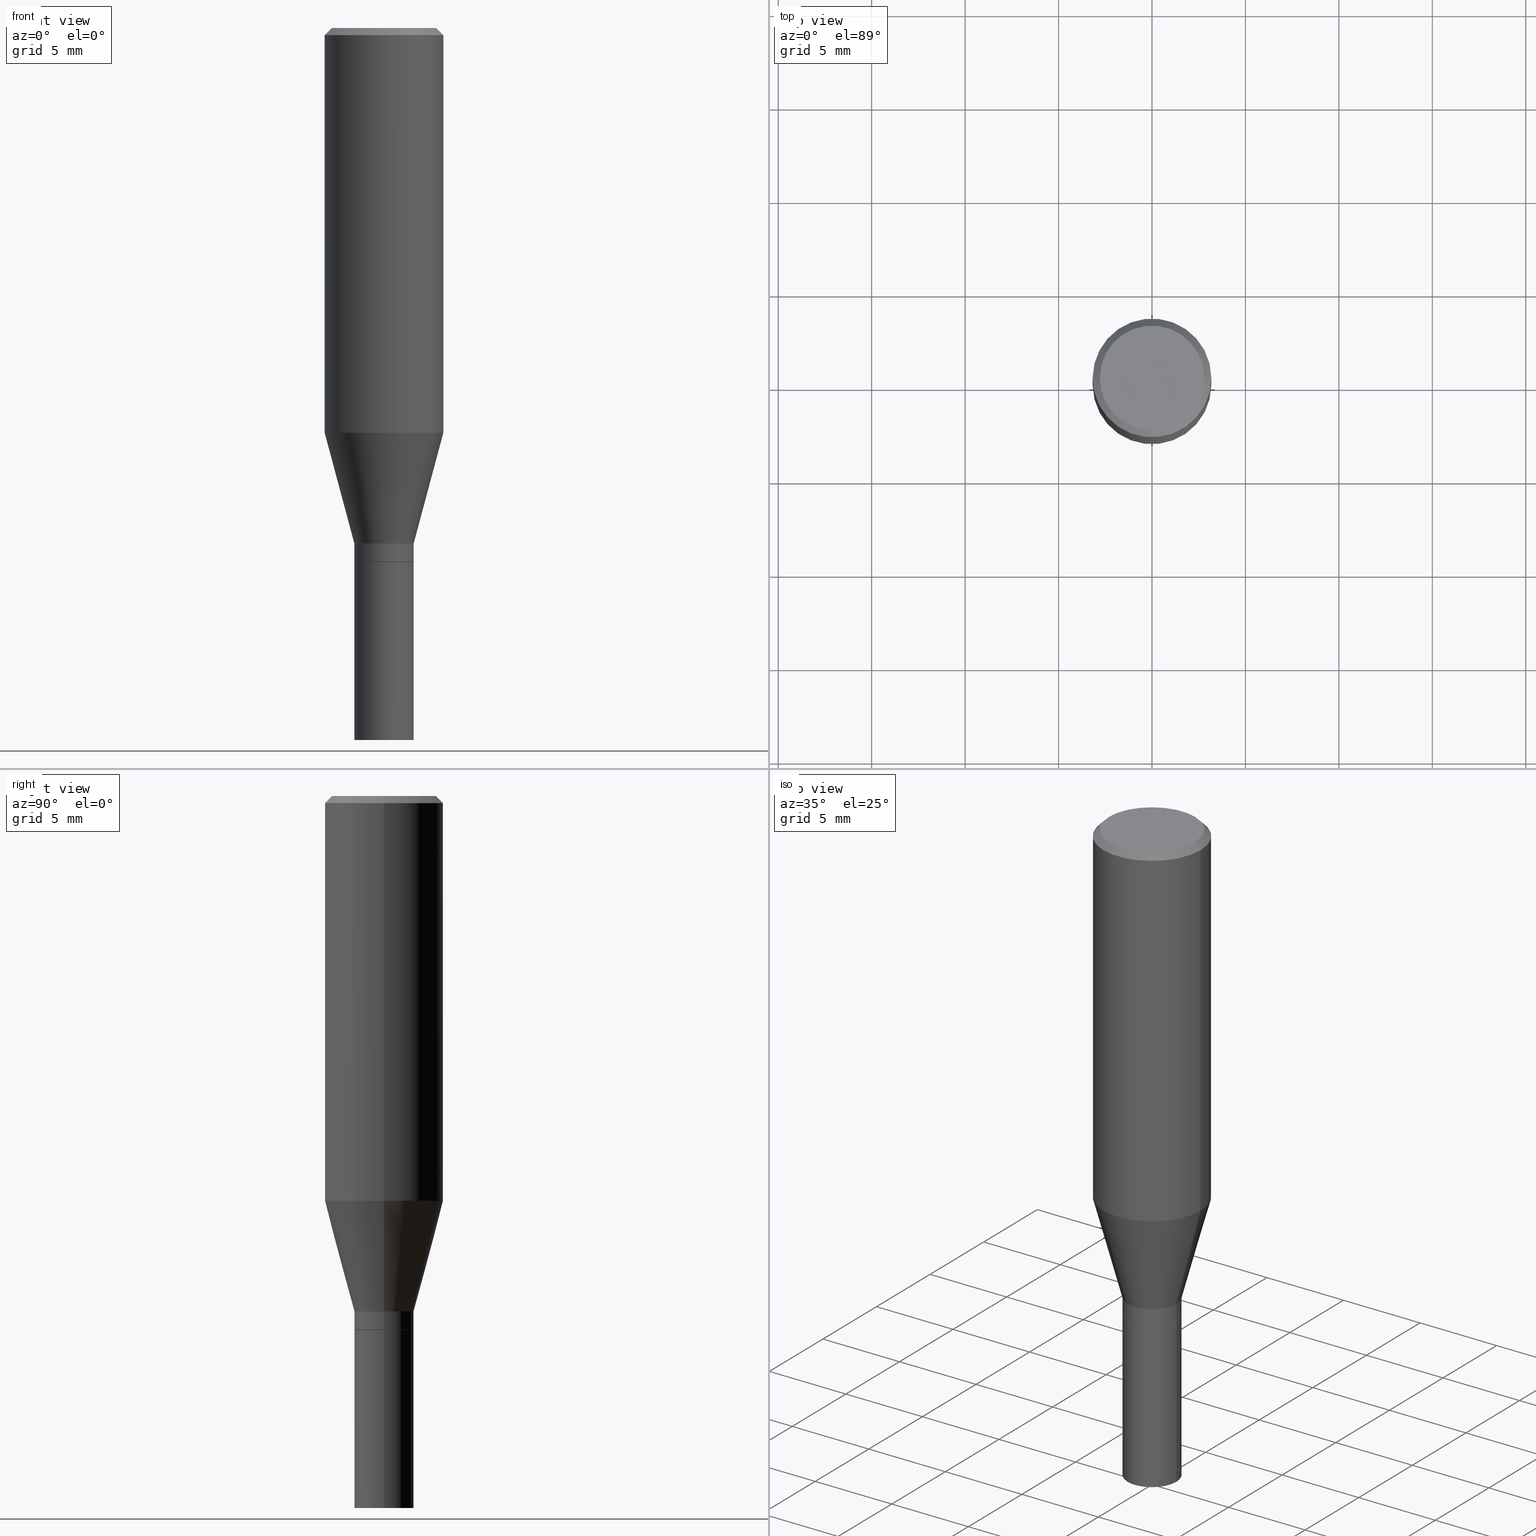
[diagram: canonical four-view strip — front | top / right | iso, engineering-drawing reading convention]
A machine part, canonical four-view strip (front | top / right | iso — engineering-drawing reading convention). The complete STEP part file that produces these views, byte-faithful:
ISO-10303-21;
HEADER;
FILE_DESCRIPTION (( 'STEP AP203' ),
    '1' );
FILE_NAME ('32280.STEP',
    '2024-03-13T16:37:38',
    ( '' ),
    ( '' ),
    'SwSTEP 2.0',
    'SolidWorks 2023',
    '' );
FILE_SCHEMA (( 'CONFIG_CONTROL_DESIGN' ));
ENDSEC;

DATA;
#1 = ORIENTED_EDGE ( 'NONE', *, *, #435, .F. ) ;
#2 = AXIS2_PLACEMENT_3D ( 'NONE', #340, #269, #224 ) ;
#3 = CC_DESIGN_PERSON_AND_ORGANIZATION_ASSIGNMENT ( #439, #408, ( #305 ) ) ;
#4 = CARTESIAN_POINT ( 'NONE',  ( 2.655779123517058654E-29, -3.791748733983656424E-15, -1.086000000000000076 ) ) ;
#5 = DIRECTION ( 'NONE',  ( -2.445468806185136597E-29, 3.491481338843145583E-15, 1.000000000000000000 ) ) ;
#6 = DIRECTION ( 'NONE',  ( -2.445468806185136597E-29, 3.491481338843145583E-15, 1.000000000000000000 ) ) ;
#7 = APPROVAL_DATE_TIME ( #247, #306 ) ;
#8 = CALENDAR_DATE ( 2024, 13, 3 ) ;
#9 = CARTESIAN_POINT ( 'NONE',  ( 0.06199999999999999956, -4.360860192215087886E-15, -1.125000000000000222 ) ) ;
#10 = PRODUCT ( '32280', '32280', '', ( #442 ) ) ;
#11 = LINE ( 'NONE', #441, #197 ) ;
#12 = DATE_AND_TIME ( #28, #223 ) ;
#13 = DIRECTION ( 'NONE',  ( 2.438088387897960049E-29, -3.491481338843145188E-15, -1.000000000000000000 ) ) ;
#14 = DIRECTION ( 'NONE',  ( -2.445468806185136597E-29, 3.491481338843145583E-15, 1.000000000000000000 ) ) ;
#15 = CARTESIAN_POINT ( 'NONE',  ( 2.749929672555186430E-29, -3.926170765529117721E-15, -1.124500000000000055 ) ) ;
#16 = ADVANCED_FACE ( 'NONE', ( #143 ), #316, .T. ) ;
#17 = LINE ( 'NONE', #219, #416 ) ;
#18 = AXIS2_PLACEMENT_3D ( 'NONE', #79, #178, #311 ) ;
#19 = CC_DESIGN_PERSON_AND_ORGANIZATION_ASSIGNMENT ( #307, #237, ( #386 ) ) ;
#20 = AXIS2_PLACEMENT_3D ( 'NONE', #251, #407, #412 ) ;
#21 = FACE_OUTER_BOUND ( 'NONE', #40, .T. ) ;
#22 = EDGE_CURVE ( 'NONE', #401, #147, #374, .T. ) ;
#23 = DIRECTION ( 'NONE',  ( -2.445468806185136597E-29, 3.491481338843145583E-15, 1.000000000000000000 ) ) ;
#24 = AXIS2_PLACEMENT_3D ( 'NONE', #4, #137, #34 ) ;
#25 = VERTEX_POINT ( 'NONE', #371 ) ;
#26 = CIRCLE ( 'NONE', #167, 0.06250000000000000000 ) ;
#27 = EDGE_LOOP ( 'NONE', ( #360, #136, #176, #201 ) ) ;
#28 = CALENDAR_DATE ( 2024, 13, 3 ) ;
#29 = ORIENTED_EDGE ( 'NONE', *, *, #229, .F. ) ;
#30 = CARTESIAN_POINT ( 'NONE',  ( 0.000000000000000000, 0.000000000000000000, 0.000000000000000000 ) ) ;
#31 = AXIS2_PLACEMENT_3D ( 'NONE', #148, #189, #221 ) ;
#32 = LOCAL_TIME ( 12, 37, 38.00000000000000000, #320 ) ;
#33 = CARTESIAN_POINT ( 'NONE',  ( 1.876754654212523840E-46, -2.679508254694119990E-32, -7.674416657721384454E-18 ) ) ;
#34 = DIRECTION ( 'NONE',  ( 1.000000000000000000, -6.982962677686264344E-15, 0.000000000000000000 ) ) ;
#35 = DIRECTION ( 'NONE',  ( 1.000000000000000000, -6.982962677686264344E-15, 0.000000000000000000 ) ) ;
#36 = DIRECTION ( 'NONE',  ( -2.445468806185136597E-29, 3.491481338843145583E-15, 1.000000000000000000 ) ) ;
#37 = ORIENTED_EDGE ( 'NONE', *, *, #74, .F. ) ;
#38 = APPROVAL_STATUS ( 'not_yet_approved' ) ;
#39 = LINE ( 'NONE', #256, #338 ) ;
#40 = EDGE_LOOP ( 'NONE', ( #95, #122, #291, #349 ) ) ;
#41 = DIRECTION ( 'NONE',  ( -2.445468806185136597E-29, 3.491481338843145583E-15, 1.000000000000000000 ) ) ;
#42 = EDGE_CURVE ( 'NONE', #345, #25, #86, .T. ) ;
#43 = CARTESIAN_POINT ( 'NONE',  ( 2.751152406958279232E-29, -3.927916506198539224E-15, -1.125000000000000222 ) ) ;
#44 = VECTOR ( 'NONE', #398, 39.37007874015747433 ) ;
#45 = CARTESIAN_POINT ( 'NONE',  ( 0.1250000000000000000, -9.099344698040885245E-16, -0.01499999999999999944 ) ) ;
#46 = LINE ( 'NONE', #145, #230 ) ;
#47 = EDGE_CURVE ( 'NONE', #345, #255, #363, .T. ) ;
#48 = DIRECTION ( 'NONE',  ( 1.000000000000000000, -6.982962677686266711E-15, 0.000000000000000000 ) ) ;
#49 = CLOSED_SHELL ( 'NONE', ( #69, #466, #146, #458, #89, #16, #428, #216, #163, #273, #325, #182 ) ) ;
#50 = AXIS2_PLACEMENT_3D ( 'NONE', #330, #14, #84 ) ;
#51 = FACE_OUTER_BOUND ( 'NONE', #414, .T. ) ;
#52 = CARTESIAN_POINT ( 'NONE',  ( -0.06250000000000019429, -2.718415364513525405E-15, -1.086000000000000076 ) ) ;
#53 = EDGE_LOOP ( 'NONE', ( #314, #85, #268, #99 ) ) ;
#54 = EDGE_CURVE ( 'NONE', #401, #391, #333, .T. ) ;
#55 = DIRECTION ( 'NONE',  ( -2.445468806185136877E-29, 3.491481338843145188E-15, 1.000000000000000000 ) ) ;
#56 = APPLICATION_CONTEXT ( 'configuration controlled 3d designs of mechanical parts and assemblies' ) ;
#57 = CIRCLE ( 'NONE', #153, 0.06249999999999992367 ) ;
#58 = ORIENTED_EDGE ( 'NONE', *, *, #42, .F. ) ;
#59 =( GEOMETRIC_REPRESENTATION_CONTEXT ( 3 ) GLOBAL_UNCERTAINTY_ASSIGNED_CONTEXT ( ( #144 ) ) GLOBAL_UNIT_ASSIGNED_CONTEXT ( ( #336, #267, #460 ) ) REPRESENTATION_CONTEXT ( 'NONE', 'WORKASPACE' ) );
#60 = CC_DESIGN_DATE_AND_TIME_ASSIGNMENT ( #234, #392, ( #386 ) ) ;
#61 = COORDINATED_UNIVERSAL_TIME_OFFSET ( 5, 0, .BEHIND. ) ;
#62 = VECTOR ( 'NONE', #294, 39.37007874015748143 ) ;
#63 = DATE_AND_TIME ( #73, #207 ) ;
#64 = CARTESIAN_POINT ( 'NONE',  ( 0.06250000000000000000, -4.364351673553930894E-15, -1.125000000000000222 ) ) ;
#65 = ORIENTED_EDGE ( 'NONE', *, *, #404, .F. ) ;
#66 = EDGE_LOOP ( 'NONE', ( #433, #362, #259, #244 ) ) ;
#67 = VERTEX_POINT ( 'NONE', #353 ) ;
#68 = DIRECTION ( 'NONE',  ( -1.000000000000000000, 6.982962677686266711E-15, 0.000000000000000000 ) ) ;
#69 = ADVANCED_FACE ( 'NONE', ( #318 ), #133, .T. ) ;
#70 = EDGE_LOOP ( 'NONE', ( #402, #352, #209, #71 ) ) ;
#71 = ORIENTED_EDGE ( 'NONE', *, *, #245, .F. ) ;
#72 = CARTESIAN_POINT ( 'NONE',  ( 2.749929672555186430E-29, -3.926170765529117721E-15, -1.124500000000000055 ) ) ;
#73 = CALENDAR_DATE ( 2024, 13, 3 ) ;
#74 = EDGE_CURVE ( 'NONE', #312, #436, #453, .T. ) ;
#75 = EDGE_LOOP ( 'NONE', ( #29, #411, #315, #200 ) ) ;
#76 = ORIENTED_EDGE ( 'NONE', *, *, #286, .F. ) ;
#77 = ORIENTED_EDGE ( 'NONE', *, *, #156, .F. ) ;
#78 = CARTESIAN_POINT ( 'NONE',  ( -0.06249999999999992367, -3.482081555679055893E-15, -1.124500000000000055 ) ) ;
#79 = CARTESIAN_POINT ( 'NONE',  ( 0.000000000000000000, 0.000000000000000000, 0.000000000000000000 ) ) ;
#80 = DIRECTION ( 'NONE',  ( -2.445468806185136877E-29, 3.491481338843145188E-15, 1.000000000000000000 ) ) ;
#81 = CIRCLE ( 'NONE', #149, 0.1250000000000000000 ) ;
#82 = APPROVAL ( #235, 'UNSPECIFIED' ) ;
#83 = DIRECTION ( 'NONE',  ( 1.000000000000000000, -6.982962677686266711E-15, 4.876176775795935793E-29 ) ) ;
#84 = DIRECTION ( 'NONE',  ( 1.000000000000000000, -6.982962677686262766E-15, 0.000000000000000000 ) ) ;
#85 = ORIENTED_EDGE ( 'NONE', *, *, #417, .T. ) ;
#86 = CIRCLE ( 'NONE', #375, 0.1100000000000000006 ) ;
#87 = CONICAL_SURFACE ( 'NONE', #177, 0.1250000000000000000, 0.7853981633974483900 ) ;
#88 = CARTESIAN_POINT ( 'NONE',  ( 3.668203209277705088E-31, -5.237222008264718399E-17, -0.01499999999999999944 ) ) ;
#89 = ADVANCED_FACE ( 'NONE', ( #319 ), #93, .T. ) ;
#90 = CARTESIAN_POINT ( 'NONE',  ( 0.1250000000000000000, -9.252425547934304180E-16, -0.01499999999999999944 ) ) ;
#91 = LINE ( 'NONE', #451, #282 ) ;
#92 = CARTESIAN_POINT ( 'NONE',  ( 0.000000000000000000, 0.000000000000000000, 0.000000000000000000 ) ) ;
#93 = CONICAL_SURFACE ( 'NONE', #185, 0.06250000000000019429, 0.2617993877991500740 ) ;
#94 = CC_DESIGN_PERSON_AND_ORGANIZATION_ASSIGNMENT ( #172, #238, ( #10 ) ) ;
#95 = ORIENTED_EDGE ( 'NONE', *, *, #169, .T. ) ;
#96 = COORDINATED_UNIVERSAL_TIME_OFFSET ( 5, 0, .BEHIND. ) ;
#97 = DIRECTION ( 'NONE',  ( 1.000000000000000000, -6.982962677686265922E-15, 4.876176775795935793E-29 ) ) ;
#98 = LENGTH_MEASURE_WITH_UNIT ( LENGTH_MEASURE( 0.02539999999999999897 ), #430 );
#99 = ORIENTED_EDGE ( 'NONE', *, *, #387, .F. ) ;
#100 = CYLINDRICAL_SURFACE ( 'NONE', #462, 0.06250000000000000000 ) ;
#101 = AXIS2_PLACEMENT_3D ( 'NONE', #103, #322, #437 ) ;
#102 = EDGE_CURVE ( 'NONE', #147, #401, #141, .T. ) ;
#103 = CARTESIAN_POINT ( 'NONE',  ( 0.000000000000000000, 0.000000000000000000, 0.000000000000000000 ) ) ;
#104 = CARTESIAN_POINT ( 'NONE',  ( -0.06250000000000000000, -4.138480047381566479E-15, -1.125000000000000222 ) ) ;
#105 = AXIS2_PLACEMENT_3D ( 'NONE', #33, #36, #368 ) ;
#106 = APPROVAL_PERSON_ORGANIZATION ( #364, #204, #348 ) ;
#107 = DIRECTION ( 'NONE',  ( -2.445468806185136597E-29, 3.491481338843145583E-15, 1.000000000000000000 ) ) ;
#108 = ORIENTED_EDGE ( 'NONE', *, *, #22, .T. ) ;
#109 = VERTEX_POINT ( 'NONE', #104 ) ;
#110 = DIRECTION ( 'NONE',  ( -2.445468806185136877E-29, 3.491481338843145188E-15, 1.000000000000000000 ) ) ;
#111 = DIRECTION ( 'NONE',  ( -2.445468806185136597E-29, 3.491481338843145583E-15, 1.000000000000000000 ) ) ;
#112 = CARTESIAN_POINT ( 'NONE',  ( 0.000000000000000000, 0.000000000000000000, 0.000000000000000000 ) ) ;
#113 = CIRCLE ( 'NONE', #239, 0.06249999999999992367 ) ;
#114 = CARTESIAN_POINT ( 'NONE',  ( 3.668203209277704895E-29, -5.237222008264718177E-15, -1.500000000000000222 ) ) ;
#115 = DIRECTION ( 'NONE',  ( -2.438088387897960049E-29, 3.491481338843145188E-15, 1.000000000000000000 ) ) ;
#116 = DIRECTION ( 'NONE',  ( -1.000000000000000000, 6.982962677686265922E-15, -4.876176775795935793E-29 ) ) ;
#117 = EDGE_CURVE ( 'NONE', #255, #160, #217, .T. ) ;
#118 = AXIS2_PLACEMENT_3D ( 'NONE', #187, #380, #116 ) ;
#119 = CARTESIAN_POINT ( 'NONE',  ( 0.06250000000000000000, -4.364351673553916694E-16, 3.047610484872459871E-30 ) ) ;
#120 = EDGE_LOOP ( 'NONE', ( #108, #227, #358, #162 ) ) ;
#121 = APPROVAL_STATUS ( 'not_yet_approved' ) ;
#122 = ORIENTED_EDGE ( 'NONE', *, *, #257, .T. ) ;
#123 = DIRECTION ( 'NONE',  ( 1.000000000000000000, -6.982962677686265922E-15, 4.876176775795935793E-29 ) ) ;
#124 = EDGE_CURVE ( 'NONE', #425, #357, #57, .T. ) ;
#125 = AXIS2_PLACEMENT_3D ( 'NONE', #138, #323, #289 ) ;
#126 = ORIENTED_EDGE ( 'NONE', *, *, #317, .F. ) ;
#127 = PRODUCT_DEFINITION_FORMATION_WITH_SPECIFIED_SOURCE ( 'ANY', '', #10, .NOT_KNOWN. ) ;
#128 = DIRECTION ( 'NONE',  ( 1.000000000000000000, -6.982962677686262766E-15, 0.000000000000000000 ) ) ;
#129 = PERSON_AND_ORGANIZATION_ROLE ( 'design_supplier' ) ;
#130 = EDGE_CURVE ( 'NONE', #436, #357, #11, .T. ) ;
#131 = VECTOR ( 'NONE', #110, 39.37007874015748143 ) ;
#132 = ORIENTED_EDGE ( 'NONE', *, *, #342, .T. ) ;
#133 = CYLINDRICAL_SURFACE ( 'NONE', #101, 0.06250000000000005551 ) ;
#134 = ORIENTED_EDGE ( 'NONE', *, *, #245, .T. ) ;
#135 = DIRECTION ( 'NONE',  ( -2.445468806185136597E-29, 3.491481338843145583E-15, 1.000000000000000000 ) ) ;
#136 = ORIENTED_EDGE ( 'NONE', *, *, #130, .T. ) ;
#137 = DIRECTION ( 'NONE',  ( -2.445468806185136597E-29, 3.491481338843145583E-15, 1.000000000000000000 ) ) ;
#138 = CARTESIAN_POINT ( 'NONE',  ( 2.751152406958279232E-29, -3.927916506198539224E-15, -1.125000000000000222 ) ) ;
#139 = DIRECTION ( 'NONE',  ( -1.000000000000000000, 6.982962677686265922E-15, -4.876176775795935793E-29 ) ) ;
#140 = EDGE_LOOP ( 'NONE', ( #58, #288, #151, #287 ) ) ;
#141 = CIRCLE ( 'NONE', #429, 0.06250000000000019429 ) ;
#142 = DIRECTION ( 'NONE',  ( 1.000000000000000000, -6.982962677686266711E-15, 0.000000000000000000 ) ) ;
#143 = FACE_OUTER_BOUND ( 'NONE', #75, .T. ) ;
#144 = UNCERTAINTY_MEASURE_WITH_UNIT (LENGTH_MEASURE( 1.000000000000000082E-05 ), #336, 'distance_accuracy_value', 'NONE');
#145 = CARTESIAN_POINT ( 'NONE',  ( -0.06250000000000005551, 4.440892098500630106E-16, -3.074334431409318916E-30 ) ) ;
#146 = ADVANCED_FACE ( 'NONE', ( #152 ), #184, .T. ) ;
#147 = VERTEX_POINT ( 'NONE', #52 ) ;
#148 = CARTESIAN_POINT ( 'NONE',  ( 0.000000000000000000, 0.000000000000000000, 0.000000000000000000 ) ) ;
#149 = AXIS2_PLACEMENT_3D ( 'NONE', #299, #208, #142 ) ;
#150 = CYLINDRICAL_SURFACE ( 'NONE', #347, 0.1250000000000000000 ) ;
#151 = ORIENTED_EDGE ( 'NONE', *, *, #117, .T. ) ;
#152 = FACE_OUTER_BOUND ( 'NONE', #140, .T. ) ;
#153 = AXIS2_PLACEMENT_3D ( 'NONE', #72, #210, #324 ) ;
#154 = CONICAL_SURFACE ( 'NONE', #283, 0.06199999999999999956, 0.7853981633972005882 ) ;
#155 = PERSON_AND_ORGANIZATION_ROLE ( 'creator' ) ;
#156 = EDGE_CURVE ( 'NONE', #165, #214, #418, .T. ) ;
#157 = DIRECTION ( 'NONE',  ( 1.000000000000000000, -6.982962677686267499E-15, 4.876176775795936353E-29 ) ) ;
#158 = ORIENTED_EDGE ( 'NONE', *, *, #257, .F. ) ;
#159 = AXIS2_PLACEMENT_3D ( 'NONE', #232, #243, #157 ) ;
#160 = VERTEX_POINT ( 'NONE', #421 ) ;
#161 = MANIFOLD_SOLID_BREP ( 'Body-Move/Copy2[2]', #49 ) ;
#162 = ORIENTED_EDGE ( 'NONE', *, *, #54, .F. ) ;
#163 = ADVANCED_FACE ( 'NONE', ( #51 ), #452, .F. ) ;
#164 = DIRECTION ( 'NONE',  ( 1.000000000000000000, -6.982962677686266711E-15, 4.876176775795935793E-29 ) ) ;
#165 = VERTEX_POINT ( 'NONE', #193 ) ;
#166 = APPROVAL_ROLE ( '' ) ;
#167 = AXIS2_PLACEMENT_3D ( 'NONE', #114, #341, #455 ) ;
#168 = CARTESIAN_POINT ( 'NONE',  ( 0.06250000000000019429, -4.228183901339049671E-15, -1.086000000000000076 ) ) ;
#169 = EDGE_CURVE ( 'NONE', #391, #67, #423, .T. ) ;
#170 = DIRECTION ( 'NONE',  ( 0.7071067811865475727, -7.319954787623256045E-15, -0.7071067811865474617 ) ) ;
#171 = DIRECTION ( 'NONE',  ( -0.2588190451025213501, 5.211531920934551042E-15, 0.9659258262890682012 ) ) ;
#172 = PERSON_AND_ORGANIZATION ( #231, #241 ) ;
#173 = CARTESIAN_POINT ( 'NONE',  ( 0.06249999999999992367, -4.362605932884508601E-15, -1.124500000000000055 ) ) ;
#174 = EDGE_LOOP ( 'NONE', ( #277, #431, #383, #126 ) ) ;
#175 = COORDINATED_UNIVERSAL_TIME_OFFSET ( 5, 0, .BEHIND. ) ;
#176 = ORIENTED_EDGE ( 'NONE', *, *, #124, .F. ) ;
#177 = AXIS2_PLACEMENT_3D ( 'NONE', #284, #399, #68 ) ;
#178 = DIRECTION ( 'NONE',  ( 0.000000000000000000, 0.000000000000000000, 1.000000000000000000 ) ) ;
#179 = CC_DESIGN_APPROVAL ( #204, ( #127 ) ) ;
#180 = CARTESIAN_POINT ( 'NONE',  ( 4.364351673554191316E-16, 0.06249999999999607259, -1.125000000000000444 ) ) ;
#181 = CARTESIAN_POINT ( 'NONE',  ( -0.06250000000000000000, -4.138480047381566479E-15, -1.500000000000000222 ) ) ;
#182 = ADVANCED_FACE ( 'NONE', ( #183 ), #337, .T. ) ;
#183 = FACE_OUTER_BOUND ( 'NONE', #66, .T. ) ;
#184 = CONICAL_SURFACE ( 'NONE', #449, 0.1250000000000000000, 0.7853981633974483900 ) ;
#185 = AXIS2_PLACEMENT_3D ( 'NONE', #389, #444, #35 ) ;
#186 = APPROVAL_PERSON_ORGANIZATION ( #381, #306, #166 ) ;
#187 = CARTESIAN_POINT ( 'NONE',  ( 7.681258945454893776E-16, 0.1100000000000000006, -3.879001556016067477E-16 ) ) ;
#188 = PRODUCT_RELATED_PRODUCT_CATEGORY ( 'detail', '', ( #10 ) ) ;
#189 = DIRECTION ( 'NONE',  ( -2.445468806185136597E-29, 3.491481338843145583E-15, 1.000000000000000000 ) ) ;
#190 = CYLINDRICAL_SURFACE ( 'NONE', #463, 0.06250000000000000000 ) ;
#191 = PERSON_AND_ORGANIZATION ( #231, #241 ) ;
#192 = FACE_OUTER_BOUND ( 'NONE', #280, .T. ) ;
#193 = CARTESIAN_POINT ( 'NONE',  ( 0.06250000000000000000, -5.673657175620109846E-15, -1.500000000000000222 ) ) ;
#194 = DIRECTION ( 'NONE',  ( -0.7071067811865475727, 2.468850131082257455E-15, -0.7071067811865474617 ) ) ;
#195 = CIRCLE ( 'NONE', #105, 0.1100000000000000006 ) ;
#196 = ADVANCED_FACE ( 'NONE', ( #388 ), #100, .T. ) ;
#197 = VECTOR ( 'NONE', #264, 39.37007874015748143 ) ;
#198 = ADVANCED_FACE ( 'NONE', ( #279 ), #427, .F. ) ;
#199 = DATE_TIME_ROLE ( 'creation_date' ) ;
#200 = ORIENTED_EDGE ( 'NONE', *, *, #342, .F. ) ;
#201 = ORIENTED_EDGE ( 'NONE', *, *, #378, .F. ) ;
#202 = EDGE_LOOP ( 'NONE', ( #1, #242 ) ) ;
#203 = CARTESIAN_POINT ( 'NONE',  ( -0.06250000000000000000, 4.440892098500626162E-16, -3.074334431409316114E-30 ) ) ;
#204 = APPROVAL ( #38, 'UNSPECIFIED' ) ;
#205 = ORIENTED_EDGE ( 'NONE', *, *, #395, .T. ) ;
#206 = AXIS2_PLACEMENT_3D ( 'NONE', #180, #13, #139 ) ;
#207 = LOCAL_TIME ( 12, 37, 38.00000000000000000, #61 ) ;
#208 = DIRECTION ( 'NONE',  ( -2.445468806185136597E-29, 3.491481338843145583E-15, 1.000000000000000000 ) ) ;
#209 = ORIENTED_EDGE ( 'NONE', *, *, #156, .T. ) ;
#210 = DIRECTION ( 'NONE',  ( -2.445468806185136597E-29, 3.491481338843145583E-15, 1.000000000000000000 ) ) ;
#211 = DATE_AND_TIME ( #8, #292 ) ;
#212 = DIRECTION ( 'NONE',  ( 1.000000000000000000, -6.982962677686266711E-15, 4.876176775795935793E-29 ) ) ;
#213 = ORIENTED_EDGE ( 'NONE', *, *, #42, .T. ) ;
#214 = VERTEX_POINT ( 'NONE', #64 ) ;
#215 = CARTESIAN_POINT ( 'NONE',  ( 2.751152406958279232E-29, -3.927916506198540013E-15, -1.125000000000000222 ) ) ;
#216 = ADVANCED_FACE ( 'NONE', ( #313 ), #87, .T. ) ;
#217 = CIRCLE ( 'NONE', #20, 0.1250000000000000000 ) ;
#218 = FACE_OUTER_BOUND ( 'NONE', #285, .T. ) ;
#219 = CARTESIAN_POINT ( 'NONE',  ( -0.1250000000000000000, 8.204981146281362596E-16, -0.01499999999999999944 ) ) ;
#220 = CARTESIAN_POINT ( 'NONE',  ( 2.085365758954078334E-29, -2.977349624593584208E-15, -0.8527468245269465008 ) ) ;
#221 = DIRECTION ( 'NONE',  ( 1.000000000000000000, -6.982962677686266711E-15, 4.876176775795935793E-29 ) ) ;
#222 = AXIS2_PLACEMENT_3D ( 'NONE', #445, #111, #321 ) ;
#223 = LOCAL_TIME ( 12, 37, 38.00000000000000000, #175 ) ;
#224 = DIRECTION ( 'NONE',  ( 1.000000000000000000, -6.982962677686266711E-15, 0.000000000000000000 ) ) ;
#225 = SECURITY_CLASSIFICATION_LEVEL ( 'unclassified' ) ;
#226 = PLANE ( 'NONE',  #249 ) ;
#227 = ORIENTED_EDGE ( 'NONE', *, *, #229, .T. ) ;
#228 = CALENDAR_DATE ( 2024, 13, 3 ) ;
#229 = EDGE_CURVE ( 'NONE', #147, #67, #354, .T. ) ;
#230 = VECTOR ( 'NONE', #327, 39.37007874015748143 ) ;
#231 = PERSON ( 'UNSPECIFIED', 'UNSPECIFIED', 'UNSPECIFIED', ('UNSPECIFIED'), ('UNSPECIFIED'), ('UNSPECIFIED') ) ;
#232 = CARTESIAN_POINT ( 'NONE',  ( 0.000000000000000000, 0.000000000000000000, 0.000000000000000000 ) ) ;
#233 = EDGE_LOOP ( 'NONE', ( #366, #350, #254, #236 ) ) ;
#234 = DATE_AND_TIME ( #228, #405 ) ;
#235 = APPROVAL_STATUS ( 'not_yet_approved' ) ;
#236 = ORIENTED_EDGE ( 'NONE', *, *, #286, .T. ) ;
#237 = PERSON_AND_ORGANIZATION_ROLE ( 'classification_officer' ) ;
#238 = PERSON_AND_ORGANIZATION_ROLE ( 'design_owner' ) ;
#239 = AXIS2_PLACEMENT_3D ( 'NONE', #15, #107, #332 ) ;
#240 = DIRECTION ( 'NONE',  ( -2.438088387897960049E-29, 3.491481338843145188E-15, 1.000000000000000000 ) ) ;
#241 = ORGANIZATION ( 'UNSPECIFIED', 'UNSPECIFIED', '' ) ;
#242 = ORIENTED_EDGE ( 'NONE', *, *, #278, .F. ) ;
#243 = DIRECTION ( 'NONE',  ( -2.445468806185136597E-29, 3.491481338843145583E-15, 1.000000000000000000 ) ) ;
#244 = ORIENTED_EDGE ( 'NONE', *, *, #102, .F. ) ;
#245 = EDGE_CURVE ( 'NONE', #109, #214, #356, .T. ) ;
#246 = FACE_OUTER_BOUND ( 'NONE', #53, .T. ) ;
#247 = DATE_AND_TIME ( #434, #32 ) ;
#248 = CARTESIAN_POINT ( 'NONE',  ( 0.06199999999999999956, -4.360860192215087886E-15, -1.125000000000000222 ) ) ;
#249 = AXIS2_PLACEMENT_3D ( 'NONE', #266, #115, #123 ) ;
#250 = CARTESIAN_POINT ( 'NONE',  ( 2.751152406958279232E-29, -3.927916506198540013E-15, -1.125000000000000222 ) ) ;
#251 = CARTESIAN_POINT ( 'NONE',  ( 3.668203209277705088E-31, -5.237222008264718399E-17, -0.01499999999999999944 ) ) ;
#252 = CC_DESIGN_SECURITY_CLASSIFICATION ( #386, ( #127 ) ) ;
#253 = FACE_OUTER_BOUND ( 'NONE', #457, .T. ) ;
#254 = ORIENTED_EDGE ( 'NONE', *, *, #450, .T. ) ;
#255 = VERTEX_POINT ( 'NONE', #90 ) ;
#256 = CARTESIAN_POINT ( 'NONE',  ( 0.06250000000000005551, -4.364351673553921131E-16, 3.047610484872463023E-30 ) ) ;
#257 = EDGE_CURVE ( 'NONE', #67, #160, #91, .T. ) ;
#258 = ORIENTED_EDGE ( 'NONE', *, *, #373, .T. ) ;
#259 = ORIENTED_EDGE ( 'NONE', *, *, #317, .T. ) ;
#260 = CARTESIAN_POINT ( 'NONE',  ( 2.655779123517058654E-29, -3.791748733983656424E-15, -1.086000000000000076 ) ) ;
#261 = CLOSED_SHELL ( 'NONE', ( #196, #198, #295, #351 ) ) ;
#262 = AXIS2_PLACEMENT_3D ( 'NONE', #250, #304, #128 ) ;
#263 = CARTESIAN_POINT ( 'NONE',  ( -0.06199999999999999956, -3.484730782853166700E-15, -1.125000000000000222 ) ) ;
#264 = DIRECTION ( 'NONE',  ( -0.7071067811863723795, 7.493145998869721494E-15, 0.7071067811867226549 ) ) ;
#265 = CC_DESIGN_PERSON_AND_ORGANIZATION_ASSIGNMENT ( #310, #129, ( #127 ) ) ;
#266 = CARTESIAN_POINT ( 'NONE',  ( 2.751152406958279232E-29, -3.927916506198539224E-15, -1.125000000000000222 ) ) ;
#267 =( NAMED_UNIT ( * ) PLANE_ANGLE_UNIT ( ) SI_UNIT ( $, .RADIAN. ) );
#268 = ORIENTED_EDGE ( 'NONE', *, *, #378, .T. ) ;
#269 = DIRECTION ( 'NONE',  ( -2.445468806185136597E-29, 3.491481338843145583E-15, 1.000000000000000000 ) ) ;
#270 = AXIS2_PLACEMENT_3D ( 'NONE', #215, #135, #365 ) ;
#271 = DIRECTION ( 'NONE',  ( -2.445468806185136877E-29, 3.491481338843145188E-15, 1.000000000000000000 ) ) ;
#272 = DIMENSIONAL_EXPONENTS ( 1.000000000000000000, 0.000000000000000000, 0.000000000000000000, 0.000000000000000000, 0.000000000000000000, 0.000000000000000000, 0.000000000000000000 ) ;
#273 = ADVANCED_FACE ( 'NONE', ( #192 ), #226, .F. ) ;
#274 = EDGE_LOOP ( 'NONE', ( #461, #258, #65, #77 ) ) ;
#275 = AXIS2_PLACEMENT_3D ( 'NONE', #220, #343, #48 ) ;
#276 = APPROVAL_PERSON_ORGANIZATION ( #465, #82, #394 ) ;
#277 = ORIENTED_EDGE ( 'NONE', *, *, #124, .T. ) ;
#278 = EDGE_CURVE ( 'NONE', #370, #165, #346, .T. ) ;
#279 = FACE_OUTER_BOUND ( 'NONE', #202, .T. ) ;
#280 = EDGE_LOOP ( 'NONE', ( #37, #443 ) ) ;
#281 = APPLICATION_PROTOCOL_DEFINITION ( 'international standard', 'config_control_design', 1994, #432 ) ;
#282 = VECTOR ( 'NONE', #379, 39.37007874015748143 ) ;
#283 = AXIS2_PLACEMENT_3D ( 'NONE', #385, #396, #459 ) ;
#284 = CARTESIAN_POINT ( 'NONE',  ( 3.668203209277705088E-31, -5.237222008264718399E-17, -0.01499999999999999944 ) ) ;
#285 = EDGE_LOOP ( 'NONE', ( #406, #134 ) ) ;
#286 = EDGE_CURVE ( 'NONE', #160, #255, #420, .T. ) ;
#287 = ORIENTED_EDGE ( 'NONE', *, *, #450, .F. ) ;
#288 = ORIENTED_EDGE ( 'NONE', *, *, #47, .T. ) ;
#289 = DIRECTION ( 'NONE',  ( 1.000000000000000000, -6.982962677686262766E-15, 0.000000000000000000 ) ) ;
#290 = AXIS2_PLACEMENT_3D ( 'NONE', #367, #41, #298 ) ;
#291 = ORIENTED_EDGE ( 'NONE', *, *, #117, .F. ) ;
#292 = LOCAL_TIME ( 12, 37, 38.00000000000000000, #426 ) ;
#293 = APPROVAL_DATE_TIME ( #12, #204 ) ;
#294 = DIRECTION ( 'NONE',  ( 0.7071067811863723795, -2.468850131080422170E-15, 0.7071067811867226549 ) ) ;
#295 = ADVANCED_FACE ( 'NONE', ( #376 ), #190, .T. ) ;
#296 = CARTESIAN_POINT ( 'NONE',  ( 1.876754654212523840E-46, -2.679508254694119990E-32, -7.674416657721384454E-18 ) ) ;
#297 = DIRECTION ( 'NONE',  ( -2.445468806185136597E-29, 3.491481338843145583E-15, 1.000000000000000000 ) ) ;
#298 = DIRECTION ( 'NONE',  ( 1.000000000000000000, -6.982962677686264344E-15, 0.000000000000000000 ) ) ;
#299 = CARTESIAN_POINT ( 'NONE',  ( 2.085365758954078334E-29, -2.977349624593584208E-15, -0.8527468245269465008 ) ) ;
#300 = CC_DESIGN_DATE_AND_TIME_ASSIGNMENT ( #63, #199, ( #305 ) ) ;
#301 = AXIS2_PLACEMENT_3D ( 'NONE', #397, #240, #97 ) ;
#302 = CC_DESIGN_APPROVAL ( #82, ( #305 ) ) ;
#303 = DESIGN_CONTEXT ( 'detailed design', #432, 'design' ) ;
#304 = DIRECTION ( 'NONE',  ( -2.445468806185136597E-29, 3.491481338843145583E-15, 1.000000000000000000 ) ) ;
#305 = PRODUCT_DEFINITION ( 'UNKNOWN', '', #127, #303 ) ;
#306 = APPROVAL ( #121, 'UNSPECIFIED' ) ;
#307 = PERSON_AND_ORGANIZATION ( #231, #241 ) ;
#308 = CONICAL_SURFACE ( 'NONE', #270, 0.06199999999999999956, 0.7853981633972005882 ) ;
#309 = DIRECTION ( 'NONE',  ( -2.445468806185136597E-29, 3.491481338843145583E-15, 1.000000000000000000 ) ) ;
#310 = PERSON_AND_ORGANIZATION ( #231, #241 ) ;
#311 = DIRECTION ( 'NONE',  ( 1.000000000000000000, 0.000000000000000000, 0.000000000000000000 ) ) ;
#312 = VERTEX_POINT ( 'NONE', #9 ) ;
#313 = FACE_OUTER_BOUND ( 'NONE', #233, .T. ) ;
#314 = ORIENTED_EDGE ( 'NONE', *, *, #130, .F. ) ;
#315 = ORIENTED_EDGE ( 'NONE', *, *, #54, .T. ) ;
#316 = CONICAL_SURFACE ( 'NONE', #24, 0.06250000000000019429, 0.2617993877991500740 ) ;
#317 = EDGE_CURVE ( 'NONE', #425, #401, #39, .T. ) ;
#318 = FACE_OUTER_BOUND ( 'NONE', #174, .T. ) ;
#319 = FACE_OUTER_BOUND ( 'NONE', #120, .T. ) ;
#320 = COORDINATED_UNIVERSAL_TIME_OFFSET ( 5, 0, .BEHIND. ) ;
#321 = DIRECTION ( 'NONE',  ( 1.000000000000000000, -6.982962677686262766E-15, 0.000000000000000000 ) ) ;
#322 = DIRECTION ( 'NONE',  ( -2.445468806185136597E-29, 3.491481338843145583E-15, 1.000000000000000000 ) ) ;
#323 = DIRECTION ( 'NONE',  ( -2.445468806185136597E-29, 3.491481338843145583E-15, 1.000000000000000000 ) ) ;
#324 = DIRECTION ( 'NONE',  ( 1.000000000000000000, -6.982962677686263555E-15, 0.000000000000000000 ) ) ;
#325 = ADVANCED_FACE ( 'NONE', ( #246 ), #308, .T. ) ;
#326 = MANIFOLD_SOLID_BREP ( 'Body-Move/Copy2[1]', #261 ) ;
#327 = DIRECTION ( 'NONE',  ( -2.445468806185136877E-29, 3.491481338843145188E-15, 1.000000000000000000 ) ) ;
#328 = CIRCLE ( 'NONE', #222, 0.06199999999999999956 ) ;
#329 = DIRECTION ( 'NONE',  ( 1.000000000000000000, -6.982962677686266711E-15, 4.876001053725558154E-29 ) ) ;
#330 = CARTESIAN_POINT ( 'NONE',  ( 3.668203209277704895E-29, -5.237222008264718177E-15, -1.500000000000000222 ) ) ;
#331 = APPLICATION_PROTOCOL_DEFINITION ( 'international standard', 'config_control_design', 1994, #56 ) ;
#332 = DIRECTION ( 'NONE',  ( 1.000000000000000000, -6.982962677686263555E-15, 0.000000000000000000 ) ) ;
#333 = LINE ( 'NONE', #447, #44 ) ;
#334 = LINE ( 'NONE', #203, #131 ) ;
#335 = EDGE_CURVE ( 'NONE', #357, #147, #46, .T. ) ;
#336 =( CONVERSION_BASED_UNIT ( 'INCH', #98 ) LENGTH_UNIT ( ) NAMED_UNIT ( #272 ) );
#337 = CYLINDRICAL_SURFACE ( 'NONE', #159, 0.06250000000000005551 ) ;
#338 = VECTOR ( 'NONE', #80, 39.37007874015748143 ) ;
#339 = FACE_OUTER_BOUND ( 'NONE', #27, .T. ) ;
#340 = CARTESIAN_POINT ( 'NONE',  ( 3.668203209277705088E-31, -5.237222008264718399E-17, -0.01499999999999999944 ) ) ;
#341 = DIRECTION ( 'NONE',  ( -2.445468806185136597E-29, 3.491481338843145583E-15, 1.000000000000000000 ) ) ;
#342 = EDGE_CURVE ( 'NONE', #67, #391, #81, .T. ) ;
#343 = DIRECTION ( 'NONE',  ( -2.445468806185136597E-29, 3.491481338843145583E-15, 1.000000000000000000 ) ) ;
#344 = CC_DESIGN_PERSON_AND_ORGANIZATION_ASSIGNMENT ( #191, #155, ( #127 ) ) ;
#345 = VERTEX_POINT ( 'NONE', #361 ) ;
#346 = CIRCLE ( 'NONE', #50, 0.06250000000000000000 ) ;
#347 = AXIS2_PLACEMENT_3D ( 'NONE', #112, #372, #83 ) ;
#348 = APPROVAL_ROLE ( '' ) ;
#349 = ORIENTED_EDGE ( 'NONE', *, *, #446, .F. ) ;
#350 = ORIENTED_EDGE ( 'NONE', *, *, #395, .F. ) ;
#351 = ADVANCED_FACE ( 'NONE', ( #218 ), #448, .F. ) ;
#352 = ORIENTED_EDGE ( 'NONE', *, *, #278, .T. ) ;
#353 = CARTESIAN_POINT ( 'NONE',  ( -0.1250000000000000000, -2.089171204893458581E-15, -0.8527468245269465008 ) ) ;
#354 = LINE ( 'NONE', #359, #393 ) ;
#355 = LINE ( 'NONE', #248, #62 ) ;
#356 = CIRCLE ( 'NONE', #125, 0.06250000000000000000 ) ;
#357 = VERTEX_POINT ( 'NONE', #78 ) ;
#358 = ORIENTED_EDGE ( 'NONE', *, *, #169, .F. ) ;
#359 = CARTESIAN_POINT ( 'NONE',  ( -0.06250000000000019429, -3.347659524133592230E-15, -1.086000000000000076 ) ) ;
#360 = ORIENTED_EDGE ( 'NONE', *, *, #74, .T. ) ;
#361 = CARTESIAN_POINT ( 'NONE',  ( 0.1100000000000000006, -8.322946247794786836E-16, -7.674416657715788472E-18 ) ) ;
#362 = ORIENTED_EDGE ( 'NONE', *, *, #387, .T. ) ;
#363 = LINE ( 'NONE', #45, #369 ) ;
#364 = PERSON_AND_ORGANIZATION ( #231, #241 ) ;
#365 = DIRECTION ( 'NONE',  ( 1.000000000000000000, -6.982962677686262766E-15, 0.000000000000000000 ) ) ;
#366 = ORIENTED_EDGE ( 'NONE', *, *, #47, .F. ) ;
#367 = CARTESIAN_POINT ( 'NONE',  ( 2.655779123517058654E-29, -3.791748733983656424E-15, -1.086000000000000076 ) ) ;
#368 = DIRECTION ( 'NONE',  ( 1.000000000000000000, -6.982962677686266711E-15, 4.876001053725558154E-29 ) ) ;
#369 = VECTOR ( 'NONE', #170, 39.37007874015748143 ) ;
#370 = VERTEX_POINT ( 'NONE', #181 ) ;
#371 = CARTESIAN_POINT ( 'NONE',  ( -0.1100000000000000006, 7.943120045868128186E-16, -7.674416657726847932E-18 ) ) ;
#372 = DIRECTION ( 'NONE',  ( -2.445468806185136597E-29, 3.491481338843145583E-15, 1.000000000000000000 ) ) ;
#373 = EDGE_CURVE ( 'NONE', #370, #109, #334, .T. ) ;
#374 = CIRCLE ( 'NONE', #290, 0.06250000000000019429 ) ;
#375 = AXIS2_PLACEMENT_3D ( 'NONE', #296, #5, #329 ) ;
#376 = FACE_OUTER_BOUND ( 'NONE', #70, .T. ) ;
#377 = DIRECTION ( 'NONE',  ( 2.445468806185136597E-29, -3.491481338843145583E-15, -1.000000000000000000 ) ) ;
#378 = EDGE_CURVE ( 'NONE', #312, #425, #355, .T. ) ;
#379 = DIRECTION ( 'NONE',  ( -2.445468806185136877E-29, 3.491481338843145188E-15, 1.000000000000000000 ) ) ;
#380 = DIRECTION ( 'NONE',  ( 2.438088387897960049E-29, -3.491481338843145188E-15, -1.000000000000000000 ) ) ;
#381 = PERSON_AND_ORGANIZATION ( #231, #241 ) ;
#382 = CARTESIAN_POINT ( 'NONE',  ( 0.1250000000000000000, -8.728703347107833388E-16, 6.095220969744919741E-30 ) ) ;
#383 = ORIENTED_EDGE ( 'NONE', *, *, #22, .F. ) ;
#384 = AXIS2_PLACEMENT_3D ( 'NONE', #43, #297, #403 ) ;
#385 = CARTESIAN_POINT ( 'NONE',  ( 2.751152406958279232E-29, -3.927916506198540013E-15, -1.125000000000000222 ) ) ;
#386 = SECURITY_CLASSIFICATION ( '', '', #225 ) ;
#387 = EDGE_CURVE ( 'NONE', #357, #425, #113, .T. ) ;
#388 = FACE_OUTER_BOUND ( 'NONE', #274, .T. ) ;
#389 = CARTESIAN_POINT ( 'NONE',  ( 2.655779123517058654E-29, -3.791748733983656424E-15, -1.086000000000000076 ) ) ;
#390 = APPROVAL_DATE_TIME ( #211, #82 ) ;
#391 = VERTEX_POINT ( 'NONE', #413 ) ;
#392 = DATE_TIME_ROLE ( 'classification_date' ) ;
#393 = VECTOR ( 'NONE', #171, 39.37007874015747433 ) ;
#394 = APPROVAL_ROLE ( '' ) ;
#395 = EDGE_CURVE ( 'NONE', #25, #345, #195, .T. ) ;
#396 = DIRECTION ( 'NONE',  ( -2.445468806185136597E-29, 3.491481338843145583E-15, 1.000000000000000000 ) ) ;
#397 = CARTESIAN_POINT ( 'NONE',  ( 3.576687321579069994E-29, -5.368277968210015545E-15, -1.500000000000000222 ) ) ;
#398 = DIRECTION ( 'NONE',  ( 0.2588190451025213501, 1.565188264969621968E-15, 0.9659258262890682012 ) ) ;
#399 = DIRECTION ( 'NONE',  ( 2.445468806185136597E-29, -3.491481338843145583E-15, -1.000000000000000000 ) ) ;
#400 = PRODUCT_DEFINITION_SHAPE ( 'NONE', 'NONE',  #305 ) ;
#401 = VERTEX_POINT ( 'NONE', #168 ) ;
#402 = ORIENTED_EDGE ( 'NONE', *, *, #373, .F. ) ;
#403 = DIRECTION ( 'NONE',  ( 1.000000000000000000, -6.982962677686262766E-15, 0.000000000000000000 ) ) ;
#404 = EDGE_CURVE ( 'NONE', #214, #109, #440, .T. ) ;
#405 = LOCAL_TIME ( 12, 37, 38.00000000000000000, #96 ) ;
#406 = ORIENTED_EDGE ( 'NONE', *, *, #404, .T. ) ;
#407 = DIRECTION ( 'NONE',  ( -2.445468806185136597E-29, 3.491481338843145583E-15, 1.000000000000000000 ) ) ;
#408 = PERSON_AND_ORGANIZATION_ROLE ( 'creator' ) ;
#409 = CYLINDRICAL_SURFACE ( 'NONE', #31, 0.1250000000000000000 ) ;
#410 = ORIENTED_EDGE ( 'NONE', *, *, #446, .T. ) ;
#411 = ORIENTED_EDGE ( 'NONE', *, *, #102, .T. ) ;
#412 = DIRECTION ( 'NONE',  ( 1.000000000000000000, -6.982962677686266711E-15, 0.000000000000000000 ) ) ;
#413 = CARTESIAN_POINT ( 'NONE',  ( 0.1250000000000000000, -3.850219959304367152E-15, -0.8527468245269465008 ) ) ;
#414 = EDGE_LOOP ( 'NONE', ( #205, #213 ) ) ;
#415 = VECTOR ( 'NONE', #271, 39.37007874015748143 ) ;
#416 = VECTOR ( 'NONE', #194, 39.37007874015748143 ) ;
#417 = EDGE_CURVE ( 'NONE', #436, #312, #328, .T. ) ;
#418 = LINE ( 'NONE', #119, #415 ) ;
#419 = DIRECTION ( 'NONE',  ( -1.000000000000000000, 6.982962677686266711E-15, 0.000000000000000000 ) ) ;
#420 = CIRCLE ( 'NONE', #2, 0.1250000000000000000 ) ;
#421 = CARTESIAN_POINT ( 'NONE',  ( -0.1250000000000000000, -6.266825026379905098E-16, -0.01499999999999999944 ) ) ;
#422 = LINE ( 'NONE', #382, #454 ) ;
#423 = CIRCLE ( 'NONE', #275, 0.1250000000000000000 ) ;
#424 = ADVANCED_BREP_SHAPE_REPRESENTATION ( '32280', ( #326, #161, #18 ), #59 ) ;
#425 = VERTEX_POINT ( 'NONE', #173 ) ;
#426 = COORDINATED_UNIVERSAL_TIME_OFFSET ( 5, 0, .BEHIND. ) ;
#427 = PLANE ( 'NONE',  #301 ) ;
#428 = ADVANCED_FACE ( 'NONE', ( #253 ), #409, .T. ) ;
#429 = AXIS2_PLACEMENT_3D ( 'NONE', #260, #6, #438 ) ;
#430 =( LENGTH_UNIT ( ) NAMED_UNIT ( * ) SI_UNIT ( $, .METRE. ) );
#431 = ORIENTED_EDGE ( 'NONE', *, *, #335, .T. ) ;
#432 = APPLICATION_CONTEXT ( 'configuration controlled 3d designs of mechanical parts and assemblies' ) ;
#433 = ORIENTED_EDGE ( 'NONE', *, *, #335, .F. ) ;
#434 = CALENDAR_DATE ( 2024, 13, 3 ) ;
#435 = EDGE_CURVE ( 'NONE', #165, #370, #26, .T. ) ;
#436 = VERTEX_POINT ( 'NONE', #263 ) ;
#437 = DIRECTION ( 'NONE',  ( 1.000000000000000000, -6.982962677686267499E-15, 4.876176775795936353E-29 ) ) ;
#438 = DIRECTION ( 'NONE',  ( 1.000000000000000000, -6.982962677686264344E-15, 0.000000000000000000 ) ) ;
#439 = PERSON_AND_ORGANIZATION ( #231, #241 ) ;
#440 = CIRCLE ( 'NONE', #384, 0.06250000000000000000 ) ;
#441 = CARTESIAN_POINT ( 'NONE',  ( -0.06199999999999999956, -3.487380010027277901E-15, -1.125000000000000222 ) ) ;
#442 = MECHANICAL_CONTEXT ( 'NONE', #56, 'mechanical' ) ;
#443 = ORIENTED_EDGE ( 'NONE', *, *, #417, .F. ) ;
#444 = DIRECTION ( 'NONE',  ( -2.445468806185136597E-29, 3.491481338843145583E-15, 1.000000000000000000 ) ) ;
#445 = CARTESIAN_POINT ( 'NONE',  ( 2.751152406958279232E-29, -3.927916506198540013E-15, -1.125000000000000222 ) ) ;
#446 = EDGE_CURVE ( 'NONE', #391, #255, #422, .T. ) ;
#447 = CARTESIAN_POINT ( 'NONE',  ( 0.06250000000000019429, -4.228183901339049671E-15, -1.086000000000000076 ) ) ;
#448 = PLANE ( 'NONE',  #206 ) ;
#449 = AXIS2_PLACEMENT_3D ( 'NONE', #88, #377, #419 ) ;
#450 = EDGE_CURVE ( 'NONE', #25, #160, #17, .T. ) ;
#451 = CARTESIAN_POINT ( 'NONE',  ( -0.1250000000000000000, 8.881784197001252323E-16, -6.148668862818632227E-30 ) ) ;
#452 = PLANE ( 'NONE',  #118 ) ;
#453 = CIRCLE ( 'NONE', #262, 0.06199999999999999956 ) ;
#454 = VECTOR ( 'NONE', #55, 39.37007874015748143 ) ;
#455 = DIRECTION ( 'NONE',  ( 1.000000000000000000, -6.982962677686262766E-15, 0.000000000000000000 ) ) ;
#456 = SHAPE_DEFINITION_REPRESENTATION ( #400, #424 ) ;
#457 = EDGE_LOOP ( 'NONE', ( #158, #132, #410, #76 ) ) ;
#458 = ADVANCED_FACE ( 'NONE', ( #21 ), #150, .T. ) ;
#459 = DIRECTION ( 'NONE',  ( 1.000000000000000000, -6.982962677686262766E-15, 0.000000000000000000 ) ) ;
#460 =( NAMED_UNIT ( * ) SI_UNIT ( $, .STERADIAN. ) SOLID_ANGLE_UNIT ( ) );
#461 = ORIENTED_EDGE ( 'NONE', *, *, #435, .T. ) ;
#462 = AXIS2_PLACEMENT_3D ( 'NONE', #92, #23, #164 ) ;
#463 = AXIS2_PLACEMENT_3D ( 'NONE', #30, #309, #212 ) ;
#464 = CC_DESIGN_APPROVAL ( #306, ( #386 ) ) ;
#465 = PERSON_AND_ORGANIZATION ( #231, #241 ) ;
#466 = ADVANCED_FACE ( 'NONE', ( #339 ), #154, .T. ) ;
ENDSEC;
END-ISO-10303-21;
